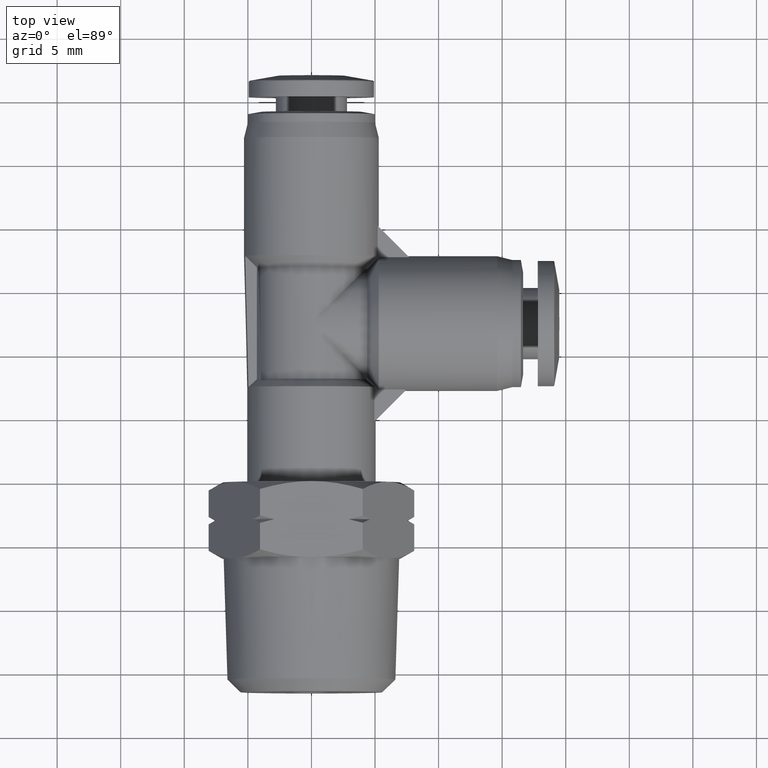
[diagram: clean part render]
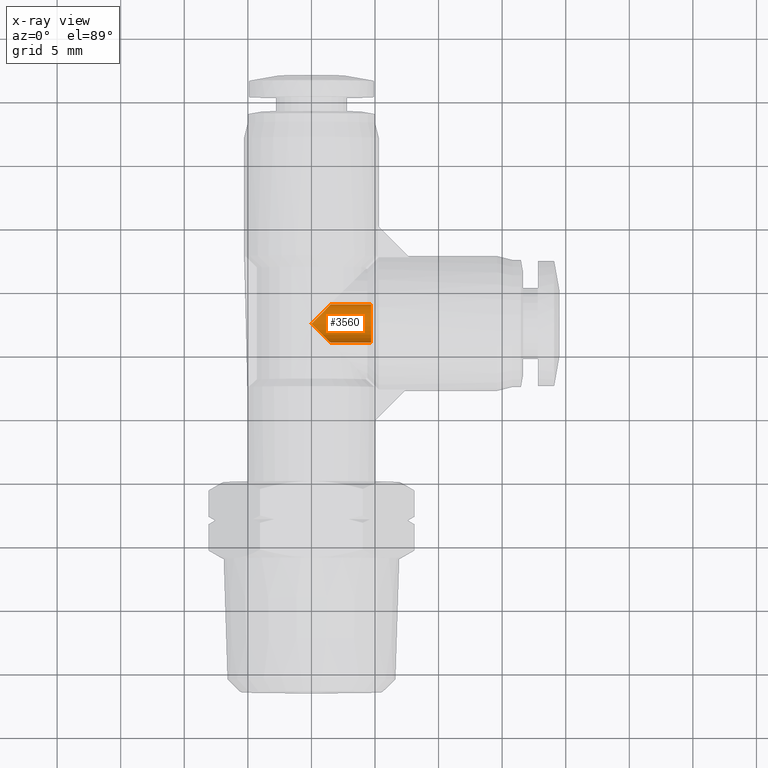
[diagram: x-ray — body ghosted, one internal face saturated and labeled with its STEP entity id]
A machine part, top view, then the same camera in x-ray: the body is ghosted and one INTERNAL B-rep face — a face not visible from any outside direction — is saturated and labeled: STEP entity #3560.
In plain terms, the highlighted cylindrical surface (edge-blend (fillet) strip) has radius 1.5 mm, axis along (-1, 0, 0).
Its self-contained STEP definition (entity closure, byte-faithful):
#10 =( BOUNDED_CURVE ( )  B_SPLINE_CURVE ( 3, ( #3468, #1584, #2425, #2914 ),
 .UNSPECIFIED., .F., .F. ) 
 B_SPLINE_CURVE_WITH_KNOTS ( ( 4, 4 ),
 ( 1.570796326794896600, 3.141592653589793100 ),
 .UNSPECIFIED. ) 
 CURVE ( )  GEOMETRIC_REPRESENTATION_ITEM ( )  RATIONAL_B_SPLINE_CURVE ( ( 1.000000000000000000, 0.8047378541243649400, 0.8047378541243649400, 1.000000000000000000 ) ) 
 REPRESENTATION_ITEM ( '' )  );
#142 = VERTEX_POINT ( 'NONE', #2710 ) ;
#160 = CARTESIAN_POINT ( 'NONE',  ( 0.05905511810820357500, 0.4330708661418234400, 0.0000000000000000000 ) ) ;
#345 = CARTESIAN_POINT ( 'NONE',  ( 0.05905511810766598400, 0.5511811023621731000, 7.232166136689446900E-018 ) ) ;
#434 = VERTEX_POINT ( 'NONE', #4990 ) ;
#456 = EDGE_CURVE ( 'NONE', #2498, #5848, #1379, .T. ) ;
#477 = DIRECTION ( 'NONE',  ( -1.000000000000000000, 1.351625000000000100E-013, 0.0000000000000000000 ) ) ;
#527 = AXIS2_PLACEMENT_3D ( 'NONE', #2085, #5285, #2573 ) ;
#849 = CARTESIAN_POINT ( 'NONE',  ( -2.240028693063854800E-012, 0.4921259842520062700, -0.05905511811020548700 ) ) ;
#913 = EDGE_CURVE ( 'NONE', #434, #1546, #3366, .T. ) ;
#979 = DIRECTION ( 'NONE',  ( -1.000000000000000000, 1.351625000000000100E-013, 0.0000000000000000000 ) ) ;
#991 = EDGE_CURVE ( 'NONE', #142, #5848, #10, .T. ) ;
#1012 = CARTESIAN_POINT ( 'NONE',  ( 0.09251968503944514600, 0.5511811023621685500, 7.232166136689446900E-018 ) ) ;
#1139 =( BOUNDED_CURVE ( )  B_SPLINE_CURVE ( 3, ( #345, #2691, #3636, #849 ),
 .UNSPECIFIED., .F., .T. ) 
 B_SPLINE_CURVE_WITH_KNOTS ( ( 4, 4 ),
 ( 3.141592653589793100, 4.712388980384689700 ),
 .UNSPECIFIED. ) 
 CURVE ( )  GEOMETRIC_REPRESENTATION_ITEM ( )  RATIONAL_B_SPLINE_CURVE ( ( 1.000000000000000000, 0.8047378541243649400, 0.8047378541243649400, 1.000000000000000000 ) ) 
 REPRESENTATION_ITEM ( '' )  );
#1154 = CARTESIAN_POINT ( 'NONE',  ( 0.09251968503942920000, 0.4330708661418189400, 0.0000000000000000000 ) ) ;
#1294 = FACE_OUTER_BOUND ( 'NONE', #3723, .T. ) ;
#1379 = LINE ( 'NONE', #1154, #1636 ) ;
#1546 = VERTEX_POINT ( 'NONE', #2190 ) ;
#1584 = CARTESIAN_POINT ( 'NONE',  ( 0.03459368725933081900, 0.4575322969905881200, -0.05905511811020548700 ) ) ;
#1636 = VECTOR ( 'NONE', #979, 39.37007874015748100 ) ;
#1798 = CYLINDRICAL_SURFACE ( 'NONE', #2218, 0.05905511811017481000 ) ;
#2085 = CARTESIAN_POINT ( 'NONE',  ( 0.1850393700787682800, 0.4921259842519812300, 0.0000000000000000000 ) ) ;
#2086 = CARTESIAN_POINT ( 'NONE',  ( 0.09251968503943716600, 0.4921259842519937200, 0.0000000000000000000 ) ) ;
#2177 = VECTOR ( 'NONE', #477, 39.37007874015748100 ) ;
#2190 = CARTESIAN_POINT ( 'NONE',  ( 0.05905511810766598400, 0.5511811023621731000, 7.232166136689446900E-018 ) ) ;
#2218 = AXIS2_PLACEMENT_3D ( 'NONE', #2086, #4876, #3986 ) ;
#2257 = EDGE_CURVE ( 'NONE', #434, #2498, #5446, .T. ) ;
#2425 = CARTESIAN_POINT ( 'NONE',  ( 0.05905511810823427200, 0.4330708661417928500, -0.03459368726141339600 ) ) ;
#2498 = VERTEX_POINT ( 'NONE', #4152 ) ;
#2573 = DIRECTION ( 'NONE',  ( -1.353084311263316600E-013, -1.000000000000000000, 0.0000000000000000000 ) ) ;
#2691 = CARTESIAN_POINT ( 'NONE',  ( 0.05905511810769666100, 0.5511811023622036300, -0.03459368726141338200 ) ) ;
#2710 = CARTESIAN_POINT ( 'NONE',  ( -2.240028693063854800E-012, 0.4921259842520062700, -0.05905511811020548700 ) ) ;
#2914 = CARTESIAN_POINT ( 'NONE',  ( 0.05905511810820357500, 0.4330708661418234400, 0.0000000000000000000 ) ) ;
#3366 = LINE ( 'NONE', #1012, #2177 ) ;
#3468 = CARTESIAN_POINT ( 'NONE',  ( -2.240028693063854800E-012, 0.4921259842520062700, -0.05905511811020548700 ) ) ;
#3560 = ADVANCED_FACE ( 'NONE', ( #1294 ), #1798, .F. ) ;
#3592 = ORIENTED_EDGE ( 'NONE', *, *, #5561, .T. ) ;
#3636 = CARTESIAN_POINT ( 'NONE',  ( 0.03459368725901591800, 0.5267196715134149200, -0.05905511811020546000 ) ) ;
#3658 = ORIENTED_EDGE ( 'NONE', *, *, #991, .T. ) ;
#3723 = EDGE_LOOP ( 'NONE', ( #4169, #4977, #3592, #3658, #4883 ) ) ;
#3986 = DIRECTION ( 'NONE',  ( -1.350193105470019100E-013, -1.000000000000000000, 0.0000000000000000000 ) ) ;
#4152 = CARTESIAN_POINT ( 'NONE',  ( 0.1850393700787602800, 0.4330708661418064500, 0.0000000000000000000 ) ) ;
#4169 = ORIENTED_EDGE ( 'NONE', *, *, #2257, .F. ) ;
#4876 = DIRECTION ( 'NONE',  ( -1.000000000000000000, 1.351625000000000100E-013, 0.0000000000000000000 ) ) ;
#4883 = ORIENTED_EDGE ( 'NONE', *, *, #456, .F. ) ;
#4977 = ORIENTED_EDGE ( 'NONE', *, *, #913, .T. ) ;
#4990 = CARTESIAN_POINT ( 'NONE',  ( 0.1850393700787762700, 0.5511811023621560100, 7.232166136689445400E-018 ) ) ;
#5285 = DIRECTION ( 'NONE',  ( -1.000000000000000000, 1.351625000000000100E-013, 0.0000000000000000000 ) ) ;
#5446 = CIRCLE ( 'NONE', #527, 0.05905511811017481000 ) ;
#5561 = EDGE_CURVE ( 'NONE', #1546, #142, #1139, .T. ) ;
#5848 = VERTEX_POINT ( 'NONE', #160 ) ;